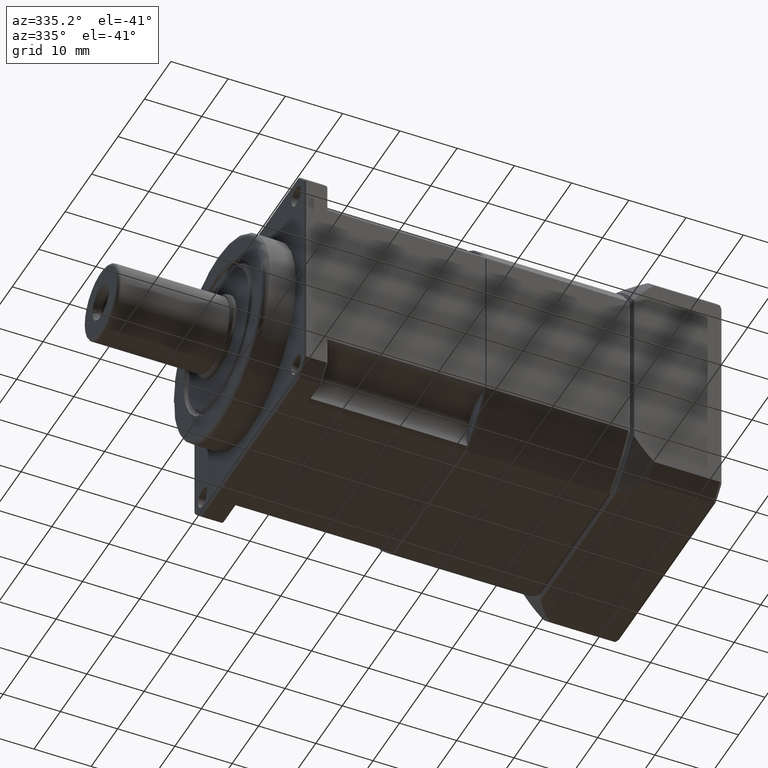
[diagram: clean part render]
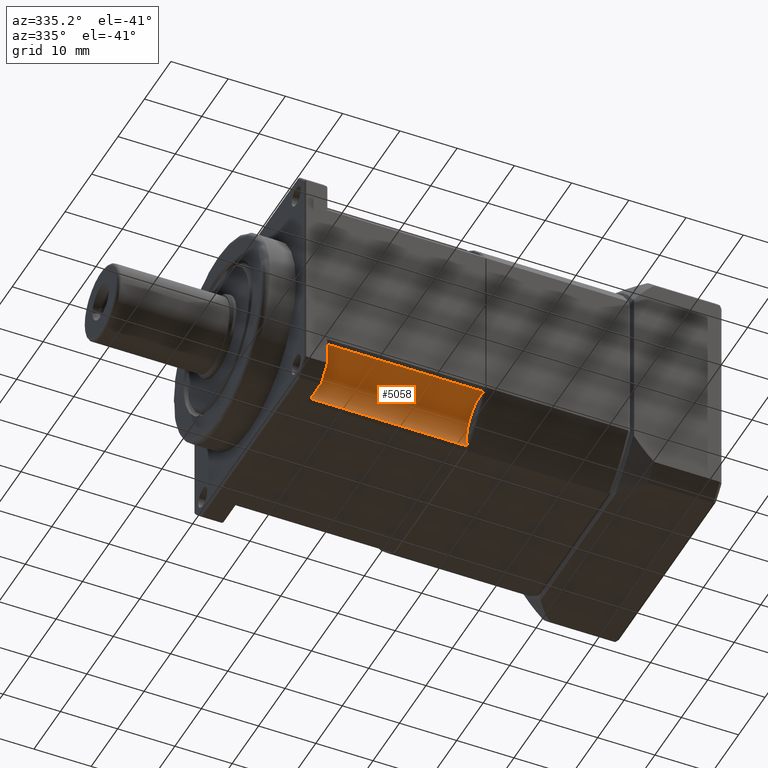
[diagram: same view with one face highlighted and labeled with its STEP entity id]
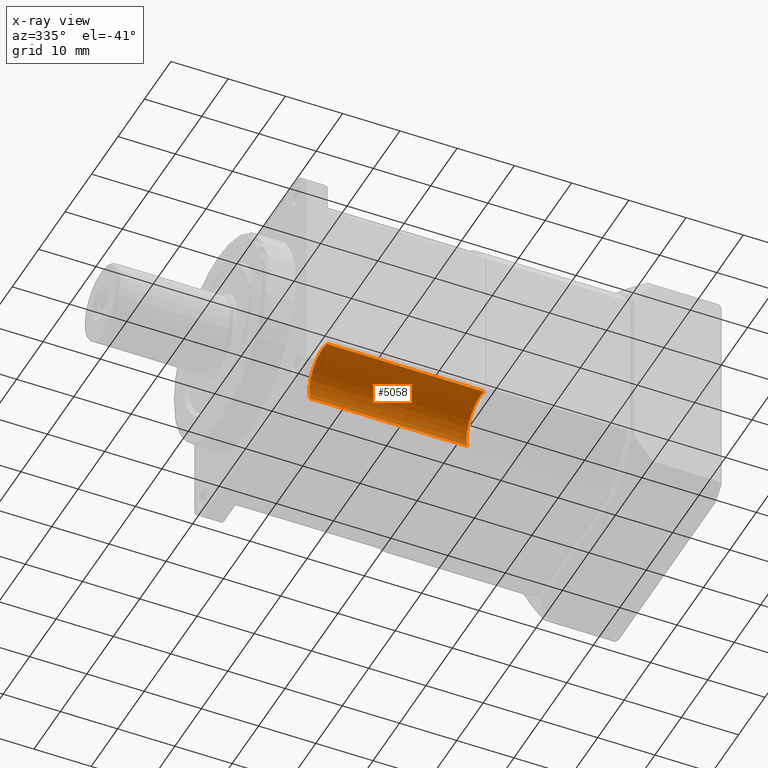
[diagram: x-ray of the same camera — body ghosted, the highlighted face saturated]
A machine part, auxiliary view. The second image highlights one B-rep face of the part: STEP entity #5058.
The next image is the same camera in x-ray: the body ghosted, the highlighted face saturated — about 0% of this face is hidden behind the body in this view.
In plain terms, the highlighted cylindrical surface (edge-blend (fillet) strip) has radius 5 mm, axis along (-1, 0, 0).
Its self-contained STEP definition (entity closure, byte-faithful):
#419=LINE('',#8861,#653);
#420=LINE('',#8862,#654);
#653=VECTOR('',#7091,27.5);
#654=VECTOR('',#7092,27.5);
#1271=FACE_OUTER_BOUND('',#1725,.T.);
#1725=EDGE_LOOP('',(#4280,#4281,#4282,#4283,#4284,#4285));
#1961=CIRCLE('',#5455,5.);
#2000=CIRCLE('',#5541,5.);
#2001=CIRCLE('',#5543,5.);
#2037=CIRCLE('',#5611,5.);
#2348=VERTEX_POINT('',#8294);
#2349=VERTEX_POINT('',#8295);
#2395=VERTEX_POINT('',#8512);
#2396=VERTEX_POINT('',#8516);
#2442=VERTEX_POINT('',#8655);
#2443=VERTEX_POINT('',#8657);
#2901=EDGE_CURVE('',#2348,#2349,#1961,.T.);
#2982=EDGE_CURVE('',#2395,#2348,#2000,.T.);
#2983=EDGE_CURVE('',#2349,#2396,#2001,.T.);
#3037=EDGE_CURVE('',#2443,#2442,#2037,.T.);
#3116=EDGE_CURVE('',#2396,#2442,#419,.T.);
#3117=EDGE_CURVE('',#2443,#2395,#420,.T.);
#4280=ORIENTED_EDGE('',*,*,#3116,.F.);
#4281=ORIENTED_EDGE('',*,*,#2983,.F.);
#4282=ORIENTED_EDGE('',*,*,#2901,.F.);
#4283=ORIENTED_EDGE('',*,*,#2982,.F.);
#4284=ORIENTED_EDGE('',*,*,#3117,.F.);
#4285=ORIENTED_EDGE('',*,*,#3037,.T.);
#4548=CYLINDRICAL_SURFACE('',#5686,5.);
#5058=ADVANCED_FACE('',(#1271),#4548,.F.);
#5455=AXIS2_PLACEMENT_3D('',#8296,#6566,#6567);
#5541=AXIS2_PLACEMENT_3D('',#8514,#6760,#6761);
#5543=AXIS2_PLACEMENT_3D('',#8517,#6764,#6765);
#5611=AXIS2_PLACEMENT_3D('',#8658,#6910,#6911);
#5686=AXIS2_PLACEMENT_3D('',#8860,#7089,#7090);
#6566=DIRECTION('center_axis',(-1.,4.44089209850051E-16,1.50008167835232E-15));
#6567=DIRECTION('ref_axis',(-4.44089209850037E-16,-1.,9.49639332579515E-15));
#6760=DIRECTION('center_axis',(-1.,4.44089209850051E-16,1.50008167835232E-15));
#6761=DIRECTION('ref_axis',(-4.44089209850037E-16,-1.,9.49639332579515E-15));
#6764=DIRECTION('center_axis',(-1.,4.44089209850051E-16,1.50008167835232E-15));
#6765=DIRECTION('ref_axis',(-4.44089209850037E-16,-1.,9.49639332579515E-15));
#6910=DIRECTION('center_axis',(-1.,4.44089209850051E-16,1.50008167835232E-15));
#6911=DIRECTION('ref_axis',(-4.44089209850037E-16,-1.,9.49639332579515E-15));
#7089=DIRECTION('center_axis',(-1.,4.44089209850051E-16,1.50008167835232E-15));
#7090=DIRECTION('ref_axis',(-4.44089209850037E-16,-1.,9.49639332579515E-15));
#7091=DIRECTION('',(-1.,4.44089209850051E-16,1.50008167835232E-15));
#7092=DIRECTION('',(1.,-4.44089209850051E-16,-1.50008167835232E-15));
#8294=CARTESIAN_POINT('',(-7.28400498561373,-59.245687730063,-41.4817164823046));
#8295=CARTESIAN_POINT('',(-7.28400498561374,-53.0014463200841,-47.7259578922835));
#8296=CARTESIAN_POINT('Origin',(-7.28400498561363,-57.7825915286528,-46.2628616908732));
#8512=CARTESIAN_POINT('',(-7.28400498561362,-59.4437967218443,-41.5468891182098));
#8514=CARTESIAN_POINT('Origin',(-7.28400498561363,-57.7825915286528,-46.2628616908732));
#8516=CARTESIAN_POINT('',(-7.28400498561363,-53.0666189559894,-47.9240668840648));
#8517=CARTESIAN_POINT('Origin',(-7.28400498561363,-57.7825915286528,-46.2628616908732));
#8655=CARTESIAN_POINT('',(-34.7840049856136,-53.0666189559894,-47.9240668840648));
#8657=CARTESIAN_POINT('',(-34.7840049856136,-59.4437967218443,-41.5468891182098));
#8658=CARTESIAN_POINT('Origin',(-34.7840049856136,-57.7825915286528,-46.2628616908732));
#8860=CARTESIAN_POINT('Origin',(-7.28400498561363,-57.7825915286528,-46.2628616908732));
#8861=CARTESIAN_POINT('',(-7.28400498561363,-53.0666189559894,-47.9240668840648));
#8862=CARTESIAN_POINT('',(-7.28400498561362,-59.4437967218443,-41.5468891182098));